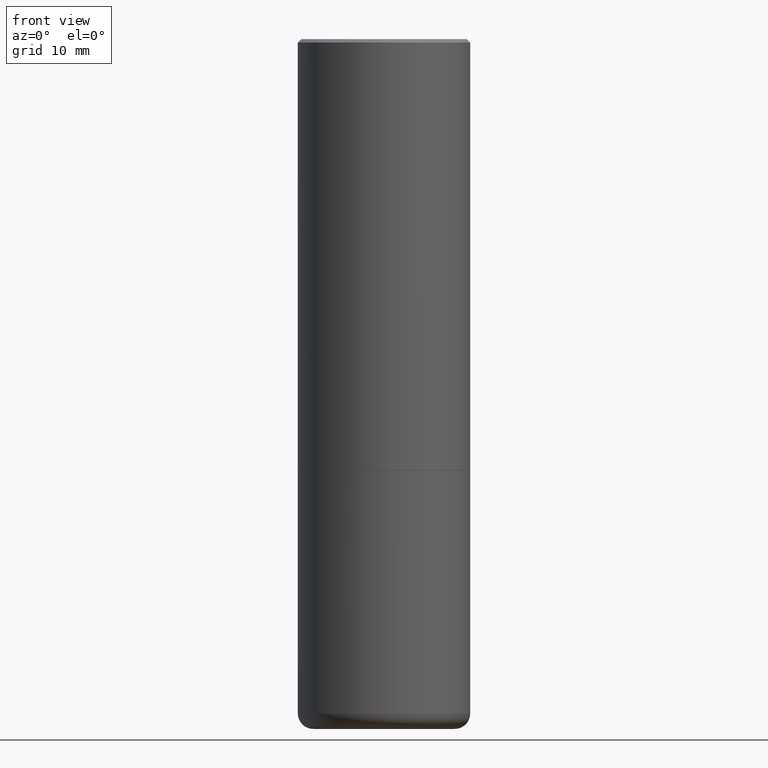
[diagram: clean part render]
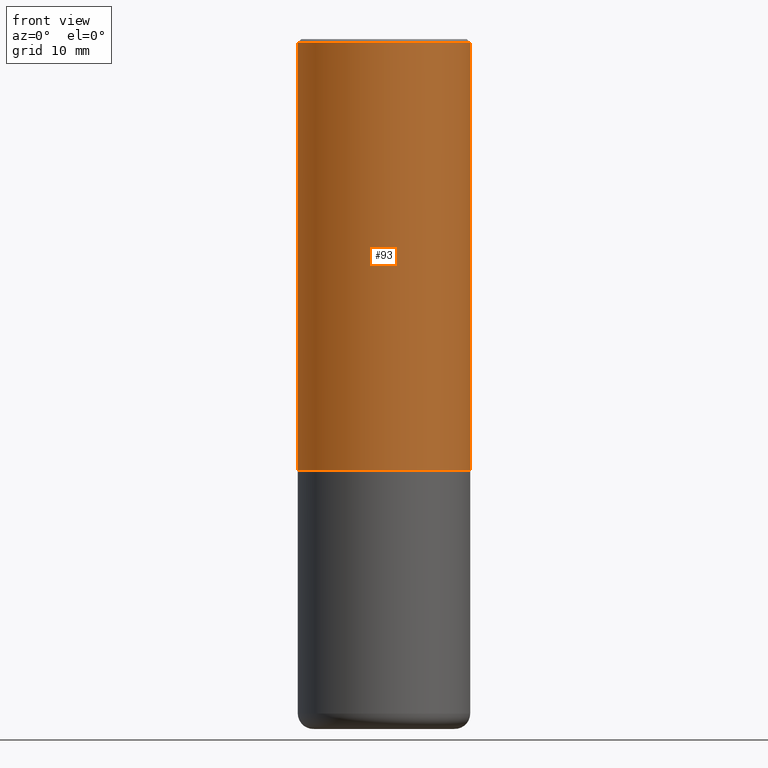
[diagram: same view with one face highlighted and labeled with its STEP entity id]
A machine part, front view. The second image highlights one B-rep face of the part: STEP entity #93.
In plain terms, the highlighted cylindrical surface (partial cylindrical patch) has radius 12.7 mm, axis along (-0, 0, 1).
Its self-contained STEP definition (entity closure, byte-faithful):
#17 = ORIENTED_EDGE ( 'NONE', *, *, #183, .F. ) ;
#24 = CARTESIAN_POINT ( 'NONE',  ( 0.4999999999999998335, -3.491481338843132566E-15, 2.438088387897967336E-29 ) ) ;
#41 = CARTESIAN_POINT ( 'NONE',  ( 0.000000000000000000, 0.000000000000000000, 0.000000000000000000 ) ) ;
#53 = EDGE_CURVE ( 'NONE', #391, #155, #396, .T. ) ;
#65 = AXIS2_PLACEMENT_3D ( 'NONE', #105, #177, #240 ) ;
#73 = CARTESIAN_POINT ( 'NONE',  ( 0.4999999999999996669, -3.500078625662626318E-15, -0.02000000000000002123 ) ) ;
#79 = CARTESIAN_POINT ( 'NONE',  ( -0.5000000000000000000, -8.448070674724403070E-16, -2.499000000000000110 ) ) ;
#93 = ADVANCED_FACE ( 'NONE', ( #272 ), #206, .T. ) ;
#94 = AXIS2_PLACEMENT_3D ( 'NONE', #330, #411, #110 ) ;
#105 = CARTESIAN_POINT ( 'NONE',  ( 6.111226546656657010E-29, -8.725211865769021935E-15, -2.499000000000000110 ) ) ;
#108 = CIRCLE ( 'NONE', #94, 0.4999999999999996669 ) ;
#110 = DIRECTION ( 'NONE',  ( 1.000000000000000000, -6.982962677686266711E-15, 0.000000000000000000 ) ) ;
#114 = DIRECTION ( 'NONE',  ( 1.000000000000000000, -6.982962677686267499E-15, 4.876176775795936353E-29 ) ) ;
#135 = CARTESIAN_POINT ( 'NONE',  ( -0.4999999999999996669, 3.421651712066268085E-15, -0.02000000000000002123 ) ) ;
#136 = EDGE_CURVE ( 'NONE', #391, #360, #171, .T. ) ;
#142 = CARTESIAN_POINT ( 'NONE',  ( -0.4999999999999998335, 3.552713678800499746E-15, -2.459467545127452330E-29 ) ) ;
#155 = VERTEX_POINT ( 'NONE', #135 ) ;
#171 = CIRCLE ( 'NONE', #65, 0.5000000000000000000 ) ;
#177 = DIRECTION ( 'NONE',  ( -2.445468806185136597E-29, 3.491481338843145583E-15, 1.000000000000000000 ) ) ;
#183 = EDGE_CURVE ( 'NONE', #155, #187, #108, .T. ) ;
#187 = VERTEX_POINT ( 'NONE', #73 ) ;
#206 = CYLINDRICAL_SURFACE ( 'NONE', #386, 0.4999999999999998335 ) ;
#223 = VECTOR ( 'NONE', #418, 39.37007874015748143 ) ;
#226 = VECTOR ( 'NONE', #274, 39.37007874015748143 ) ;
#231 = EDGE_LOOP ( 'NONE', ( #321, #247, #235, #17 ) ) ;
#235 = ORIENTED_EDGE ( 'NONE', *, *, #429, .T. ) ;
#240 = DIRECTION ( 'NONE',  ( 1.000000000000000000, -6.982962677686265133E-15, 0.000000000000000000 ) ) ;
#243 = DIRECTION ( 'NONE',  ( -2.445468806185136597E-29, 3.491481338843145583E-15, 1.000000000000000000 ) ) ;
#247 = ORIENTED_EDGE ( 'NONE', *, *, #136, .T. ) ;
#272 = FACE_OUTER_BOUND ( 'NONE', #231, .T. ) ;
#274 = DIRECTION ( 'NONE',  ( -2.445468806185136877E-29, 3.491481338843145188E-15, 1.000000000000000000 ) ) ;
#321 = ORIENTED_EDGE ( 'NONE', *, *, #53, .F. ) ;
#329 = CARTESIAN_POINT ( 'NONE',  ( 0.5000000000000000000, -1.221669320461215371E-14, -2.499000000000000110 ) ) ;
#330 = CARTESIAN_POINT ( 'NONE',  ( 4.890937612370278413E-31, -6.982962677686297772E-17, -0.02000000000000002123 ) ) ;
#360 = VERTEX_POINT ( 'NONE', #329 ) ;
#386 = AXIS2_PLACEMENT_3D ( 'NONE', #41, #243, #114 ) ;
#388 = LINE ( 'NONE', #24, #223 ) ;
#391 = VERTEX_POINT ( 'NONE', #79 ) ;
#396 = LINE ( 'NONE', #142, #226 ) ;
#411 = DIRECTION ( 'NONE',  ( -2.445468806185136597E-29, 3.491481338843145583E-15, 1.000000000000000000 ) ) ;
#418 = DIRECTION ( 'NONE',  ( -2.445468806185136877E-29, 3.491481338843145188E-15, 1.000000000000000000 ) ) ;
#429 = EDGE_CURVE ( 'NONE', #360, #187, #388, .T. ) ;